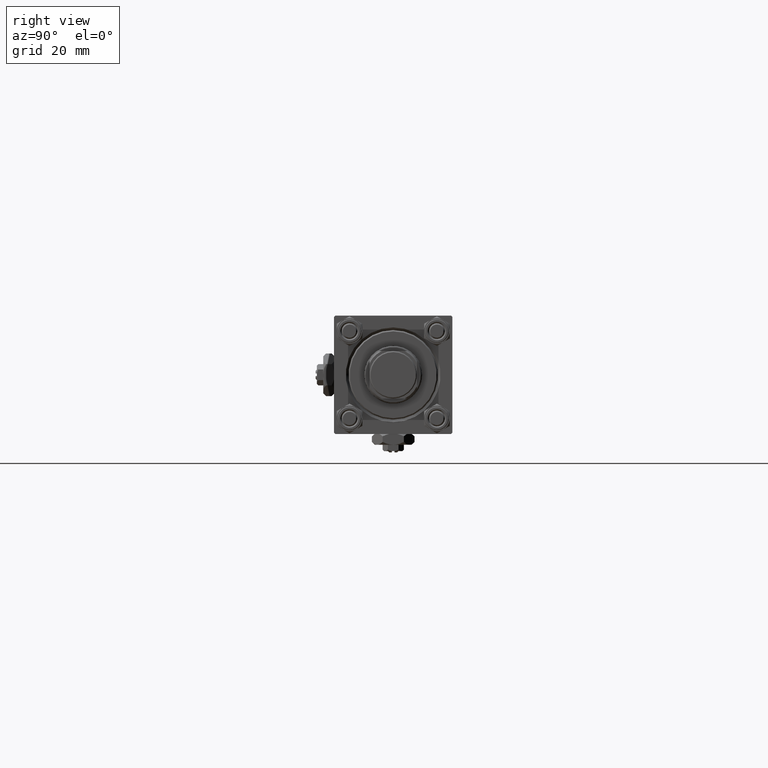
[diagram: clean part render]
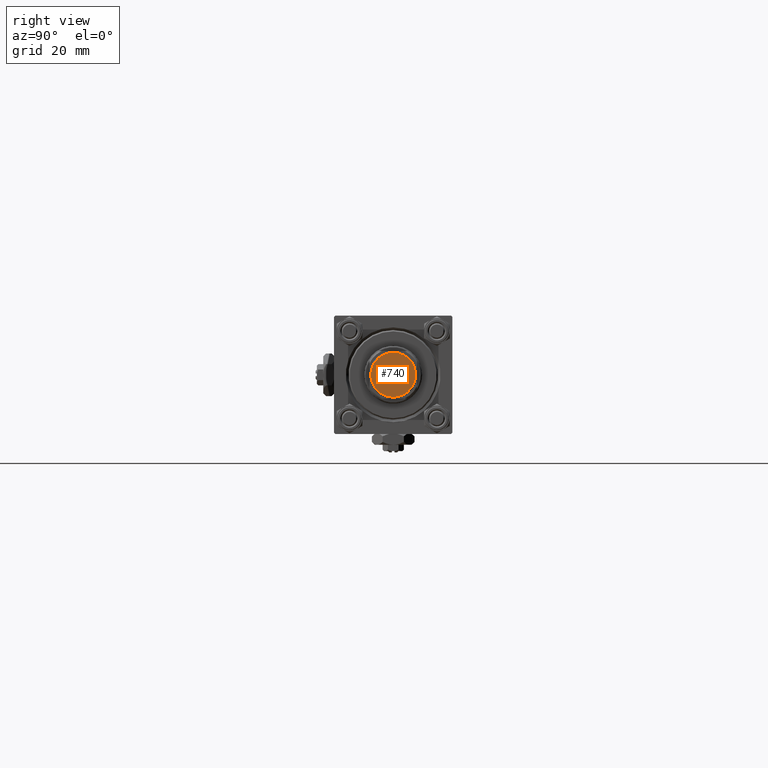
[diagram: same view with one face highlighted and labeled with its STEP entity id]
A machine part, right view. The second image highlights one B-rep face of the part: STEP entity #740.
In plain terms, the highlighted planar face has unit normal (1, 0, 0).
Its self-contained STEP definition (entity closure, byte-faithful):
#693 = DIRECTION ( 'NONE',  ( 0.000000000000000000, 0.000000000000000000, 1.000000000000000000 ) ) ;
#740 = ADVANCED_FACE ( 'NONE', ( #26985 ), #15103, .T. ) ;
#2657 = DIRECTION ( 'NONE',  ( 1.000000000000000000, 0.000000000000000000, 0.000000000000000000 ) ) ;
#4577 = CARTESIAN_POINT ( 'NONE',  ( -8.499999999999998224, 1.071565949253933927E-15, 0.000000000000000000 ) ) ;
#8867 = VERTEX_POINT ( 'NONE', #4577 ) ;
#10964 = ORIENTED_EDGE ( 'NONE', *, *, #31699, .T. ) ;
#13374 = DIRECTION ( 'NONE',  ( 1.000000000000000000, 0.000000000000000000, 0.000000000000000000 ) ) ;
#15103 = PLANE ( 'NONE',  #43645 ) ;
#17959 = CARTESIAN_POINT ( 'NONE',  ( 8.499999999999998224, 0.000000000000000000, 0.000000000000000000 ) ) ;
#20770 = CARTESIAN_POINT ( 'NONE',  ( 0.000000000000000000, 0.000000000000000000, 0.000000000000000000 ) ) ;
#22995 = DIRECTION ( 'NONE',  ( 0.000000000000000000, 0.000000000000000000, 1.000000000000000000 ) ) ;
#24587 = CIRCLE ( 'NONE', #35609, 8.499999999999998224 ) ;
#25158 = VERTEX_POINT ( 'NONE', #17959 ) ;
#26985 = FACE_OUTER_BOUND ( 'NONE', #41816, .T. ) ;
#27501 = DIRECTION ( 'NONE',  ( 1.000000000000000000, 0.000000000000000000, -0.000000000000000000 ) ) ;
#29919 = AXIS2_PLACEMENT_3D ( 'NONE', #38878, #22995, #2657 ) ;
#31477 = CARTESIAN_POINT ( 'NONE',  ( 0.000000000000000000, 0.000000000000000000, 0.000000000000000000 ) ) ;
#31699 = EDGE_CURVE ( 'NONE', #8867, #25158, #40053, .T. ) ;
#35609 = AXIS2_PLACEMENT_3D ( 'NONE', #20770, #693, #13374 ) ;
#38878 = CARTESIAN_POINT ( 'NONE',  ( 0.000000000000000000, 0.000000000000000000, 0.000000000000000000 ) ) ;
#40053 = CIRCLE ( 'NONE', #29919, 8.499999999999998224 ) ;
#40493 = ORIENTED_EDGE ( 'NONE', *, *, #46470, .T. ) ;
#41816 = EDGE_LOOP ( 'NONE', ( #40493, #10964 ) ) ;
#42886 = DIRECTION ( 'NONE',  ( 0.000000000000000000, 0.000000000000000000, 1.000000000000000000 ) ) ;
#43645 = AXIS2_PLACEMENT_3D ( 'NONE', #31477, #42886, #27501 ) ;
#46470 = EDGE_CURVE ( 'NONE', #25158, #8867, #24587, .T. ) ;